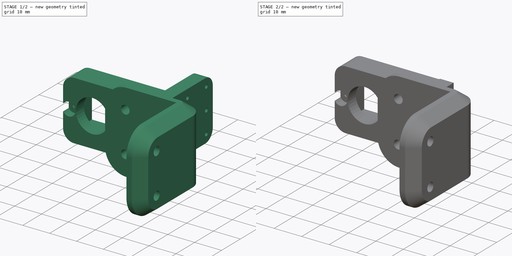
[diagram: build sequence overview — one tinted view per stage of 2, left to right]
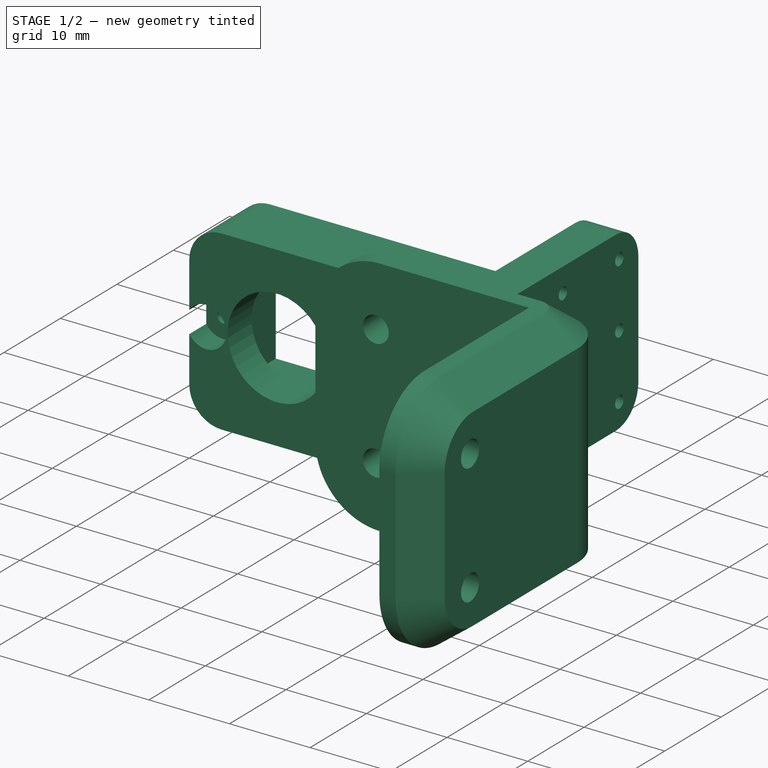
[diagram: stage 1 of 2 — iso view after this stage's code; geometry added in this stage tinted green]
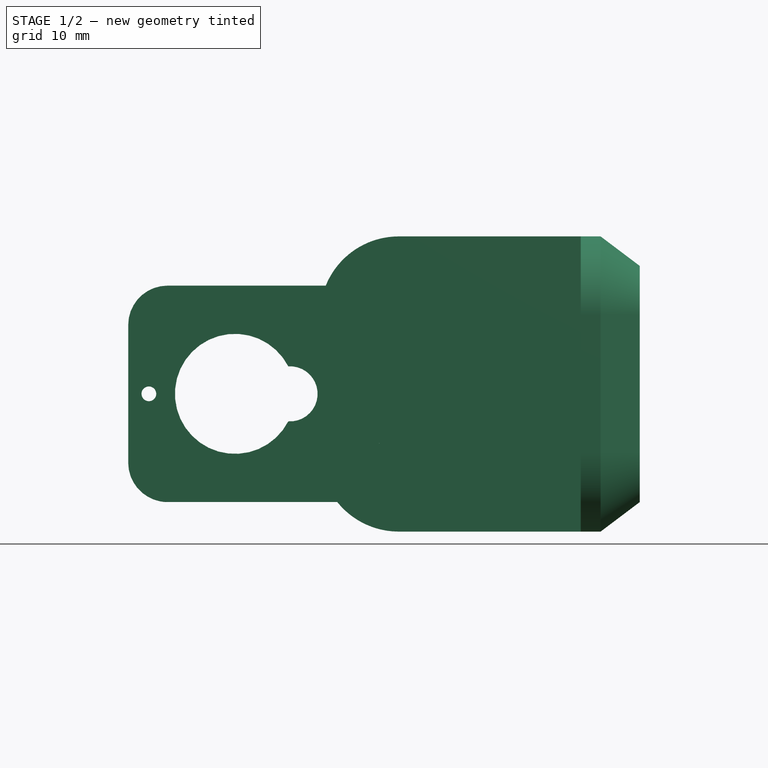
[diagram: stage 1 of 2 — front view after this stage's code; geometry added in this stage tinted green]
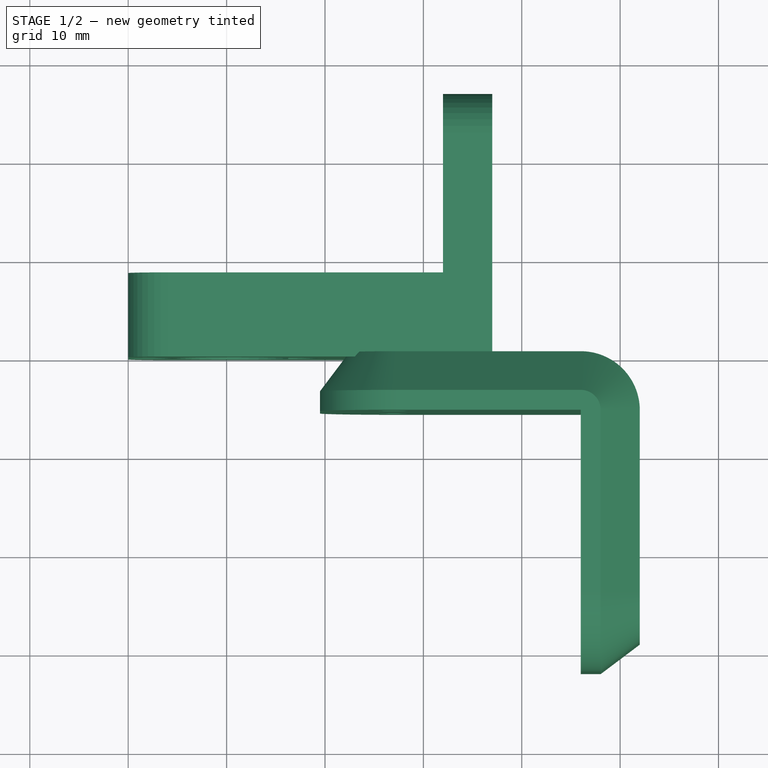
[diagram: stage 1 of 2 — top view after this stage's code; geometry added in this stage tinted green]
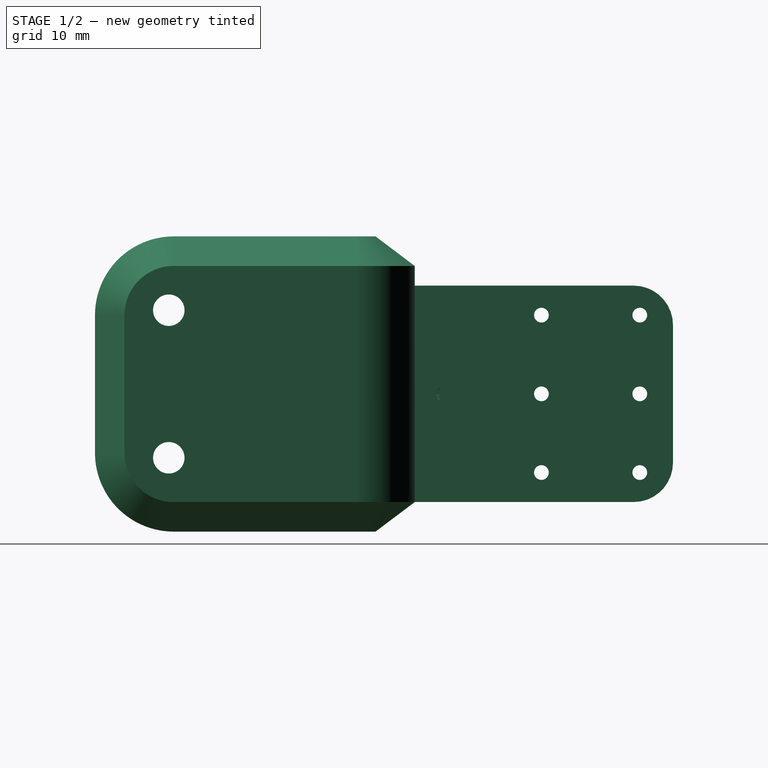
[diagram: stage 1 of 2 — right view after this stage's code; geometry added in this stage tinted green]
FCSTD DOCUMENT  (FreeCAD 0.19R24267 +148 (Git))
Label: Angle-motor
License: All rights reserved
LicenseURL: http://en.wikipedia.org/wiki/All_rights_reserved
objects: PartDesign::Body×2, Part::FeaturePython×2, Part::Fuse×1, Sketcher::SketchObject×1, Part::Face×1, PartDesign::FeatureBase×1, App::DocumentObjectGroup×1
note: 8 computed .brp shape members not serialized (recipe doc carries the construction recipe); baked Part::Feature solids carry a one-line shape summary decoded from their .brp

FEATURE [Part::Fuse] Fusion
FEATURE [Sketcher::SketchObject] Sketch
  FullyConstrained = false
  MapMode = 5
  Placement = pos=(0,0,0) rot=(1,0,0;1.5708rad)
  Support = -> [XZ_Plane]
  sketch-geometry (4):
    g0: LineSegment StartX=120.205 StartY=59.9898 StartZ=0 EndX=-117.196 EndY=59.9898 EndZ=0
    g1: LineSegment StartX=-117.196 StartY=59.9898 StartZ=0 EndX=-117.196 EndY=-33.2998 EndZ=0
    g2: LineSegment StartX=-117.196 StartY=-33.2998 StartZ=0 EndX=120.205 EndY=-33.2998 EndZ=0
    g3: LineSegment StartX=120.205 StartY=-33.2998 StartZ=0 EndX=120.205 EndY=59.9898 EndZ=0
  constraints (8):
    c: Coincident(g0,g1)
    c: Coincident(g1,g2)
    c: Coincident(g2,g3)
    c: Coincident(g3,g0)
    c: Horizontal(g0)
    c: Horizontal(g2)
    c: Vertical(g1)
    c: Vertical(g3)
FEATURE [PartDesign::Body] Body
  Group = -> [Sketch]
  Origin = -> Origin
FEATURE [Part::Face] Face
  FaceMakerClass = Part::FaceMakerBullseye
  Placement = pos=(0,9,0) rot=(0,0,1;0rad)
  Sources = -> [Sketch]
FEATURE [PartDesign::FeatureBase] BaseFeature
  BaseFeature = -> Fusion
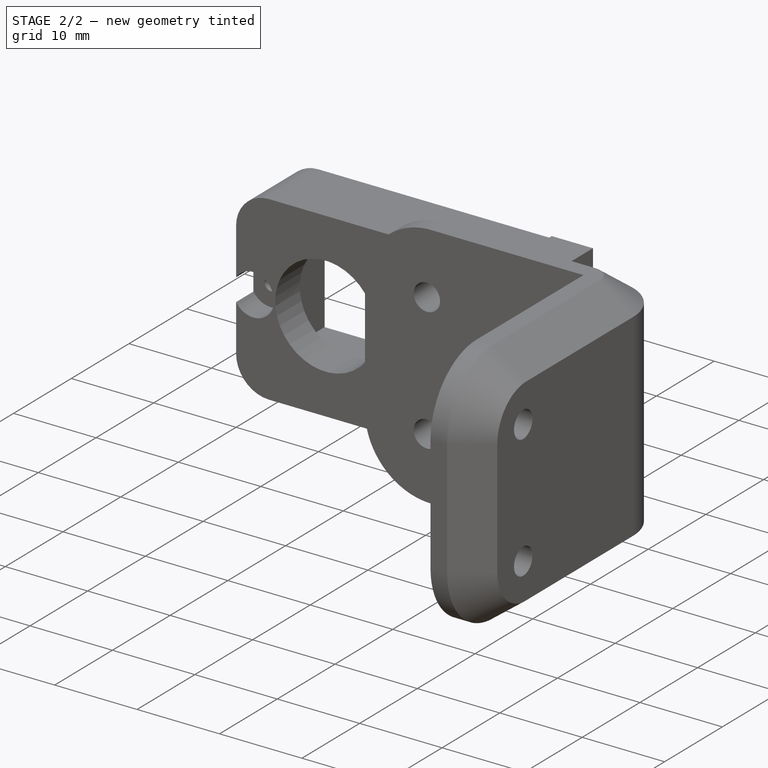
[diagram: stage 2 of 2 — iso view after this stage's code; geometry added in this stage tinted green]
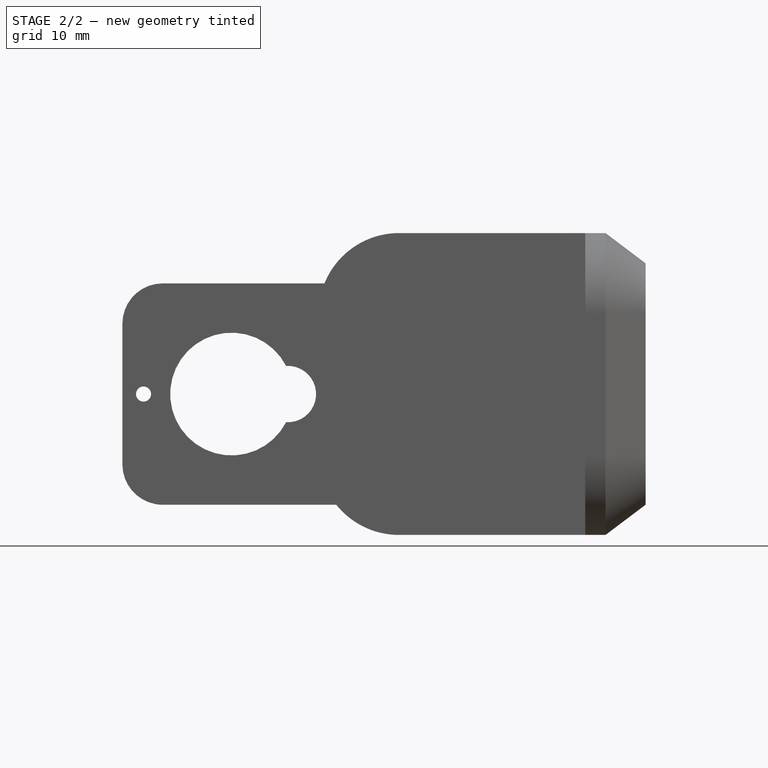
[diagram: stage 2 of 2 — front view after this stage's code; geometry added in this stage tinted green]
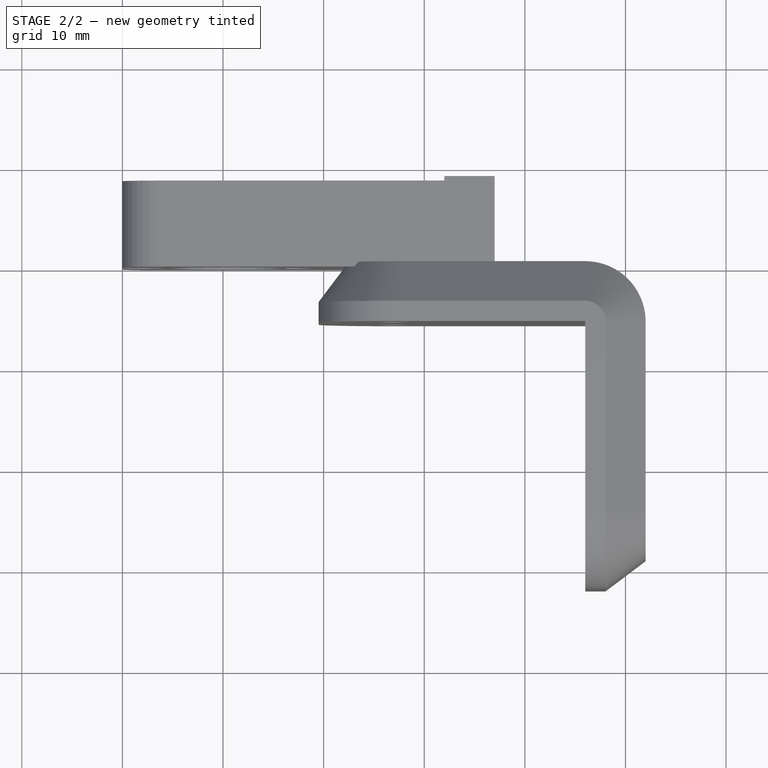
[diagram: stage 2 of 2 — top view after this stage's code; geometry added in this stage tinted green]
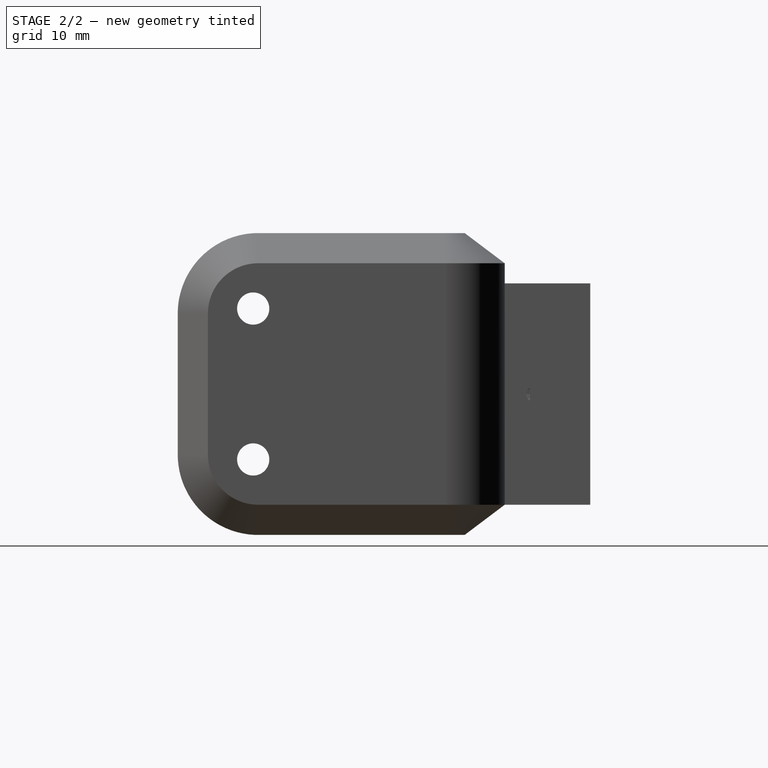
[diagram: stage 2 of 2 — right view after this stage's code; geometry added in this stage tinted green]
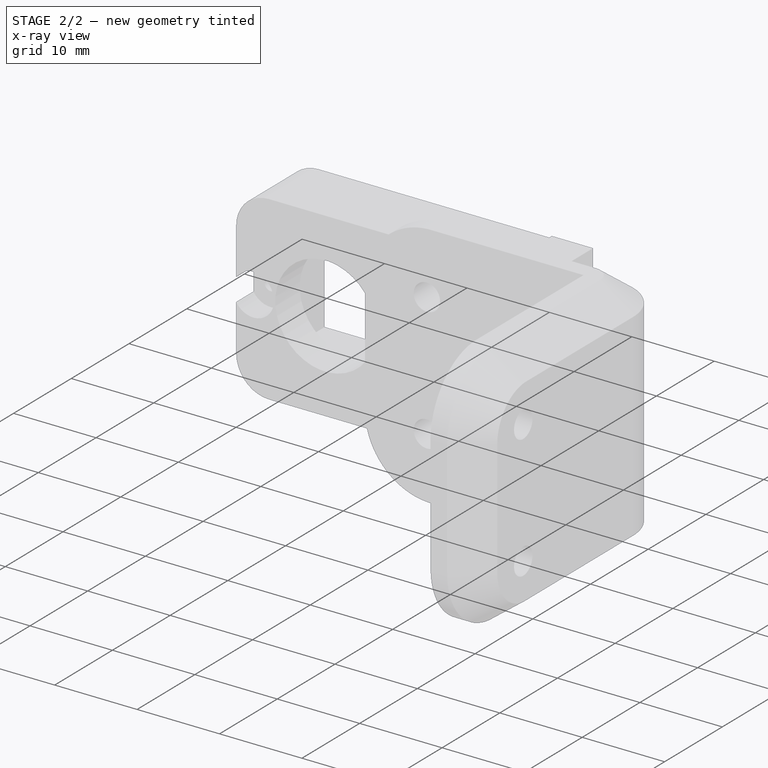
[diagram: stage 2 of 2 — x-ray composite at the iso view; earlier geometry ghosted, this stage's added geometry solid]
FEATURE [PartDesign::Body] Body001
  BaseFeature = -> Fusion
  Group = -> [BaseFeature]
  Origin = -> Origin001
  Tip = -> BaseFeature
FEATURE [Part::FeaturePython] Slice  # WARN: FeaturePython — macro-defined, semantics opaque (R4)
  Base = -> Body001
  Mode = 1
  Tolerance = 0
  Tools = -> [Face]
FEATURE [Part::FeaturePython] Slice_child0  label="Slice.0"  # WARN: FeaturePython — macro-defined, semantics opaque (R4)
  Base = -> Slice
  FilterType = 1
  Invert = false
  OverrideMaxVal = 0
  WindowFrom = 80
  WindowTo = 100
  items = 0
FEATURE [App::DocumentObjectGroup] GrExplode_Slice  label="Exploded Slice"
  Group = -> [Slice_child0]
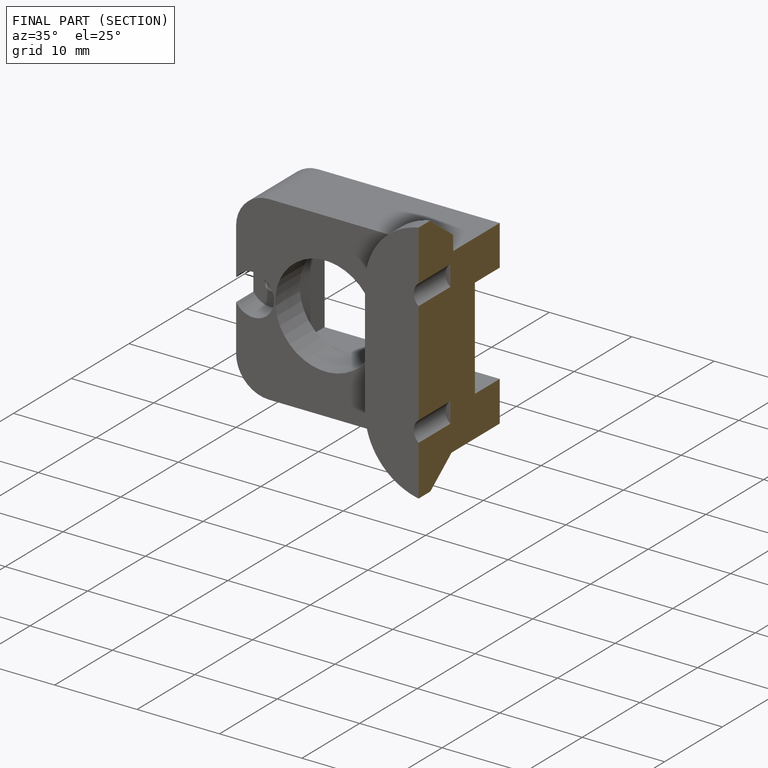
[diagram: finished part — half-section view (interior)]
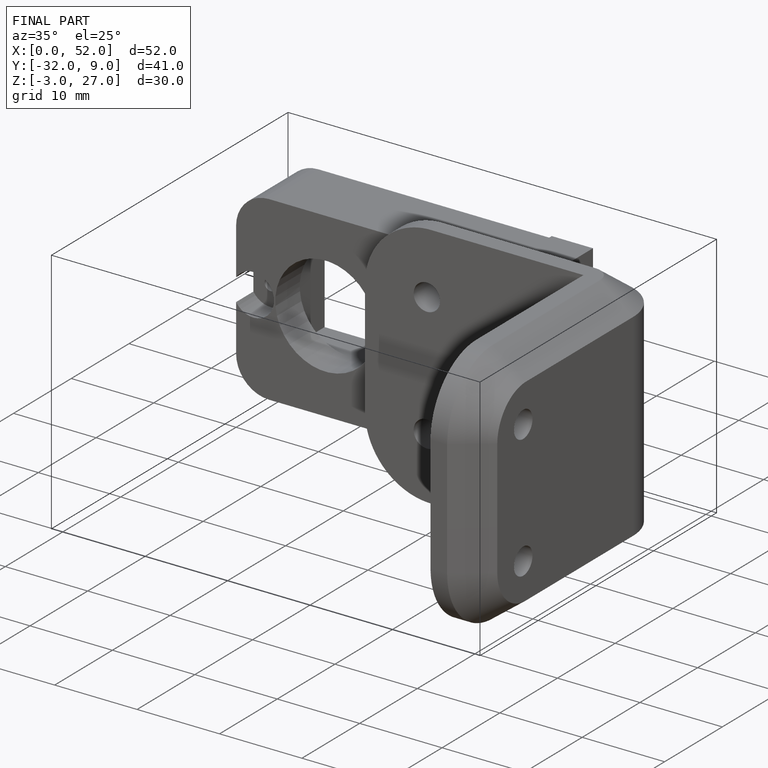
[diagram: finished part — iso view with bounding-box wireframe]
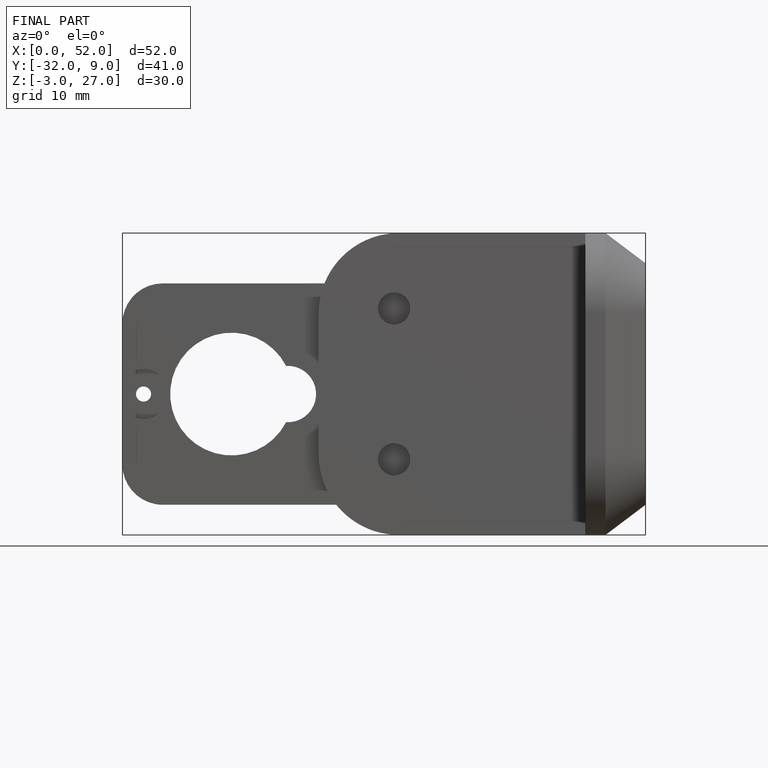
[diagram: finished part — front view with bounding-box wireframe]
